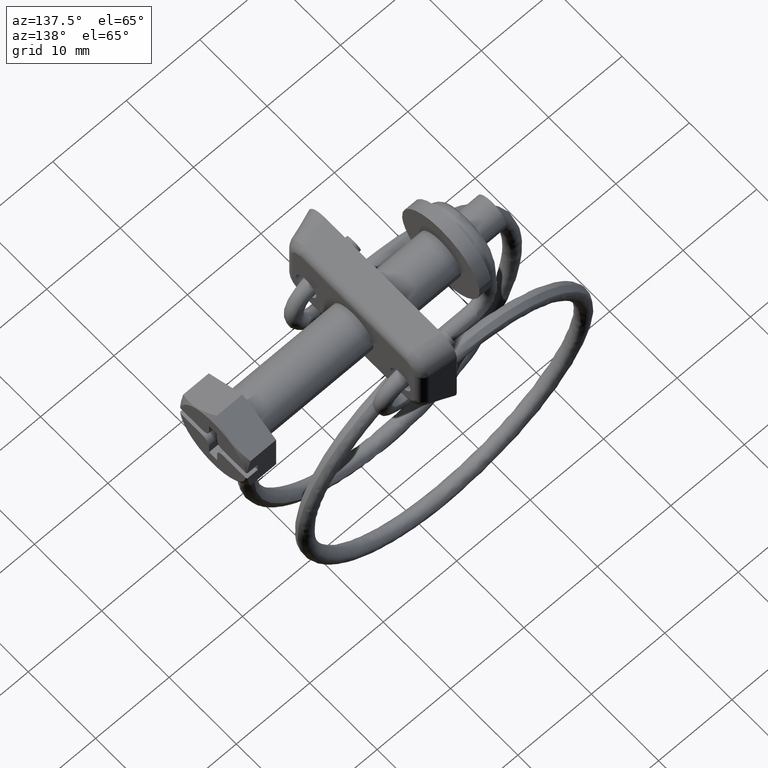
[diagram: clean part render]
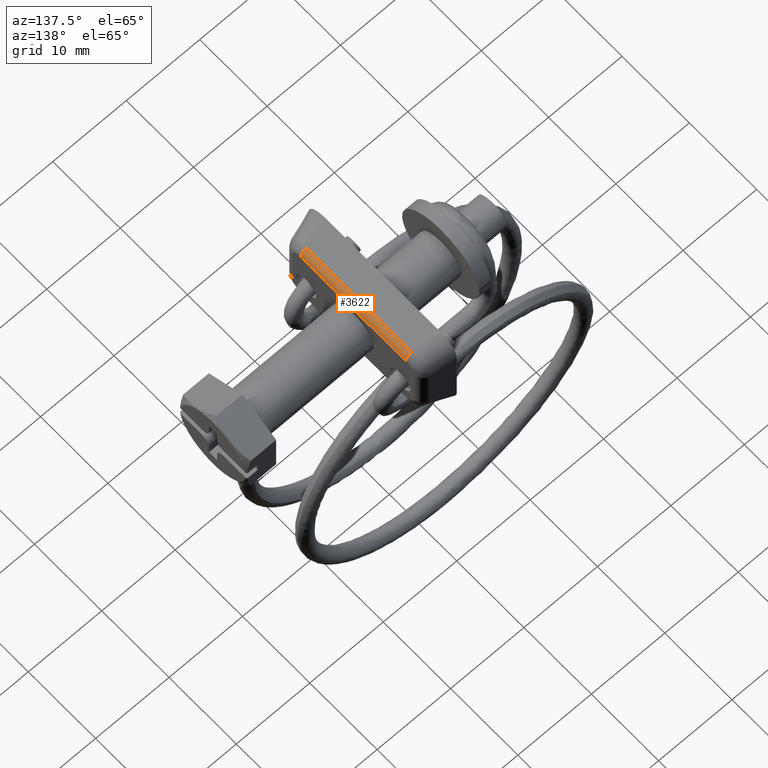
[diagram: same view with one face highlighted and labeled with its STEP entity id]
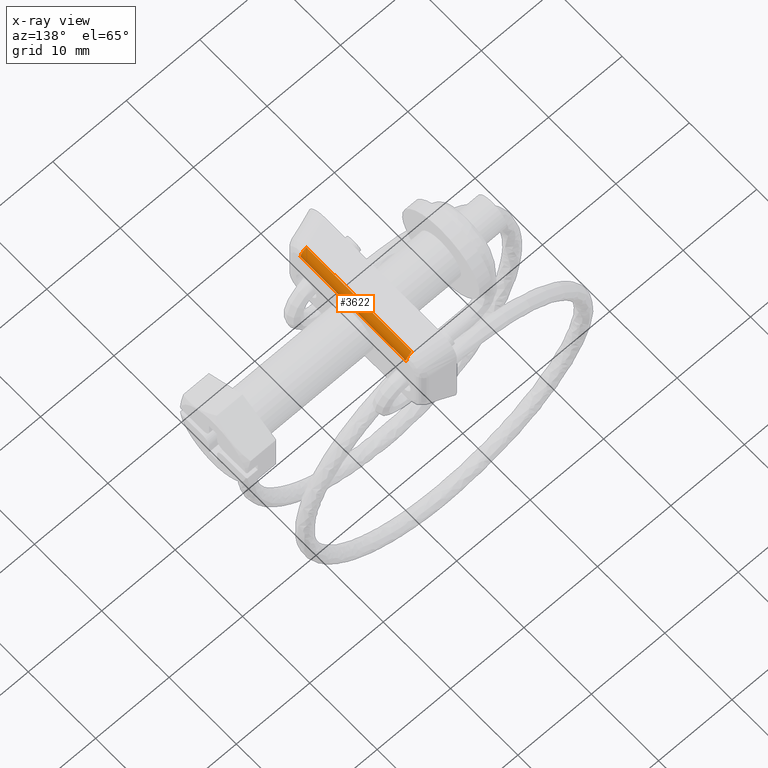
[diagram: x-ray of the same camera — body ghosted, the highlighted face saturated]
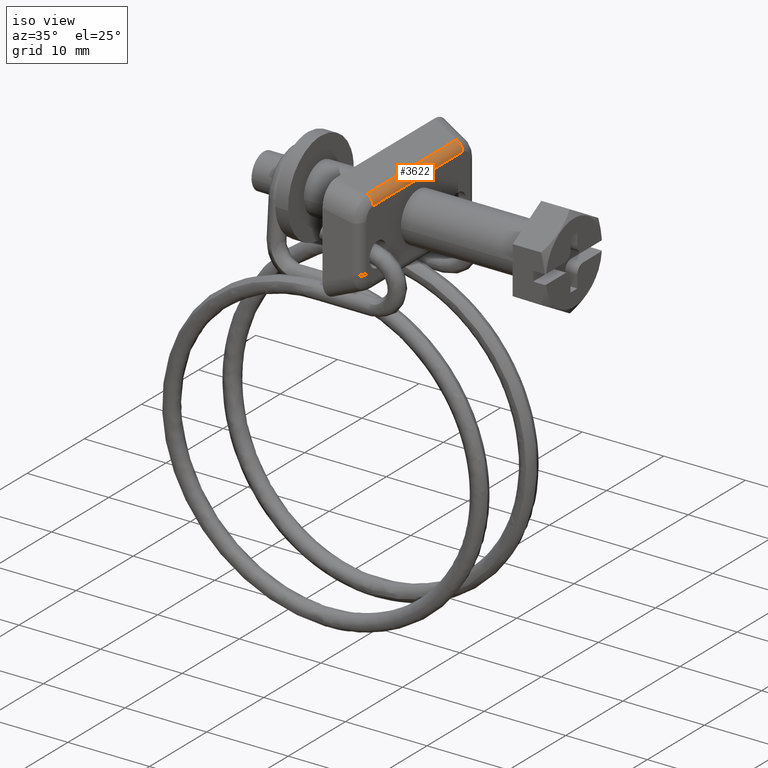
[diagram: same view with one face highlighted and labeled with its STEP entity id]
A machine part, auxiliary view. The second image highlights one B-rep face of the part: STEP entity #3622.
The next image is the same camera in x-ray: the body ghosted, the highlighted face saturated — about 0% of this face is hidden behind the body in this view.
A second angle (iso view) of the same face is appended — the face is thin or edge-on in the first view.
In plain terms, the highlighted face is a freeform B-spline surface patch.
Its self-contained STEP definition (entity closure, byte-faithful):
#3446=CARTESIAN_POINT('',(-35.478652022991000,7.837173833659399,5.291994008621761));
#3447=VERTEX_POINT('',#3446);
#3448=CARTESIAN_POINT('',(-34.700000000000003,7.837173833659399,4.168398938202520));
#3449=VERTEX_POINT('',#3448);
#3450=CARTESIAN_POINT('',(-35.478652022991007,7.837173833659399,5.291994008621726));
#3451=CARTESIAN_POINT('',(-34.700000000000010,7.837173833659399,4.999999620858167));
#3452=CARTESIAN_POINT('',(-34.700000000000003,7.837173833659399,4.168398938202480));
#3460=(BOUNDED_CURVE()B_SPLINE_CURVE(2,(#3450,#3451,#3452),.UNSPECIFIED.,.F.,.U.)CURVE()GEOMETRIC_REPRESENTATION_ITEM()QUASI_UNIFORM_CURVE()RATIONAL_B_SPLINE_CURVE((1.0,0.821925578800830,1.0))REPRESENTATION_ITEM(''));
#3461=EDGE_CURVE('',#3447,#3449,#3460,.T.);
#3578=CARTESIAN_POINT('',(-34.700772540776534,-8.229032525342422,4.125346632289353));
#3579=CARTESIAN_POINT('',(-34.700772540776534,8.238828992634449,4.125346632289353));
#3580=CARTESIAN_POINT('',(-34.667884415512319,-8.229032525342422,5.041449546237937));
#3581=CARTESIAN_POINT('',(-34.667884415512319,8.238828992634447,5.041449546237937));
#3582=CARTESIAN_POINT('',(-35.543093552599927,-8.229032525342422,5.314094267600431));
#3583=CARTESIAN_POINT('',(-35.543093552599927,8.238828992634449,5.314094267600431));
#3591=(BOUNDED_SURFACE()B_SPLINE_SURFACE(1,2,((#3578,#3580,#3582),(#3579,#3581,#3583)),.UNSPECIFIED.,.F.,.F.,.U.)B_SPLINE_SURFACE_WITH_KNOTS((2,2),(3,3),(0.0,16.467861517976871),(0.0,0.982392697220575),.UNSPECIFIED.)GEOMETRIC_REPRESENTATION_ITEM()RATIONAL_B_SPLINE_SURFACE(((1.0,0.791743312453950,0.992666322893073),(1.0,0.791743312453950,0.992666322893073)))REPRESENTATION_ITEM('')SURFACE());
#3592=CARTESIAN_POINT('',(-35.478652022990950,-7.837173833659441,5.291994008621720));
#3593=VERTEX_POINT('',#3592);
#3594=CARTESIAN_POINT('',(-34.700000000000003,-7.837173833659450,4.168398938202480));
#3595=VERTEX_POINT('',#3594);
#3596=CARTESIAN_POINT('',(-35.478652022990957,-7.837173833659450,5.291994008621705));
#3597=CARTESIAN_POINT('',(-34.699999999999996,-7.837173833659450,4.999999620858123));
#3598=CARTESIAN_POINT('',(-34.700000000000003,-7.837173833659450,4.168398938202480));
#3606=(BOUNDED_CURVE()B_SPLINE_CURVE(2,(#3596,#3597,#3598),.UNSPECIFIED.,.F.,.U.)CURVE()GEOMETRIC_REPRESENTATION_ITEM()QUASI_UNIFORM_CURVE()RATIONAL_B_SPLINE_CURVE((1.0,0.821925578800844,1.0))REPRESENTATION_ITEM(''));
#3607=EDGE_CURVE('',#3593,#3595,#3606,.T.);
#3608=ORIENTED_EDGE('',*,*,#3607,.T.);
#3609=CARTESIAN_POINT('',(-34.700000000000003,7.837173833659399,4.168398938202520));
#3610=CARTESIAN_POINT('',(-34.700000000000003,-7.837173833659450,4.168398938202480));
#3611=QUASI_UNIFORM_CURVE('',1,(#3609,#3610),.UNSPECIFIED.,.F.,.U.);
#3612=EDGE_CURVE('',#3449,#3595,#3611,.T.);
#3613=ORIENTED_EDGE('',*,*,#3612,.F.);
#3614=ORIENTED_EDGE('',*,*,#3461,.F.);
#3615=CARTESIAN_POINT('',(-35.478652022990950,-7.837173833659441,5.291994008621720));
#3616=CARTESIAN_POINT('',(-35.478652022991000,7.837173833659399,5.291994008621761));
#3617=QUASI_UNIFORM_CURVE('',1,(#3615,#3616),.UNSPECIFIED.,.F.,.U.);
#3618=EDGE_CURVE('',#3593,#3447,#3617,.T.);
#3619=ORIENTED_EDGE('',*,*,#3618,.F.);
#3620=EDGE_LOOP('',(#3608,#3613,#3614,#3619));
#3621=FACE_OUTER_BOUND('',#3620,.T.);
#3622=ADVANCED_FACE('',(#3621),#3591,.T.);